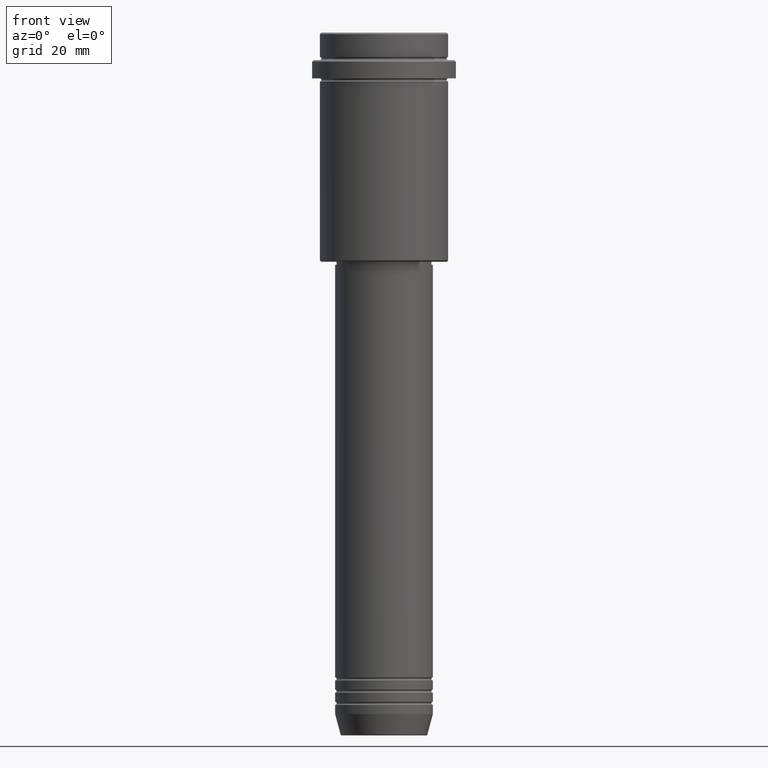
[diagram: clean part render]
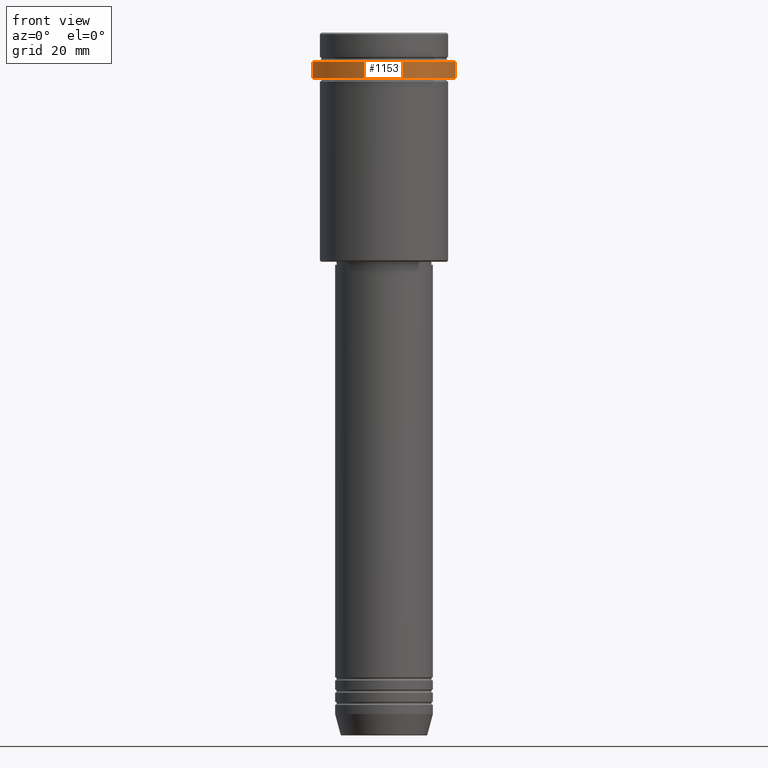
[diagram: same view with one face highlighted and labeled with its STEP entity id]
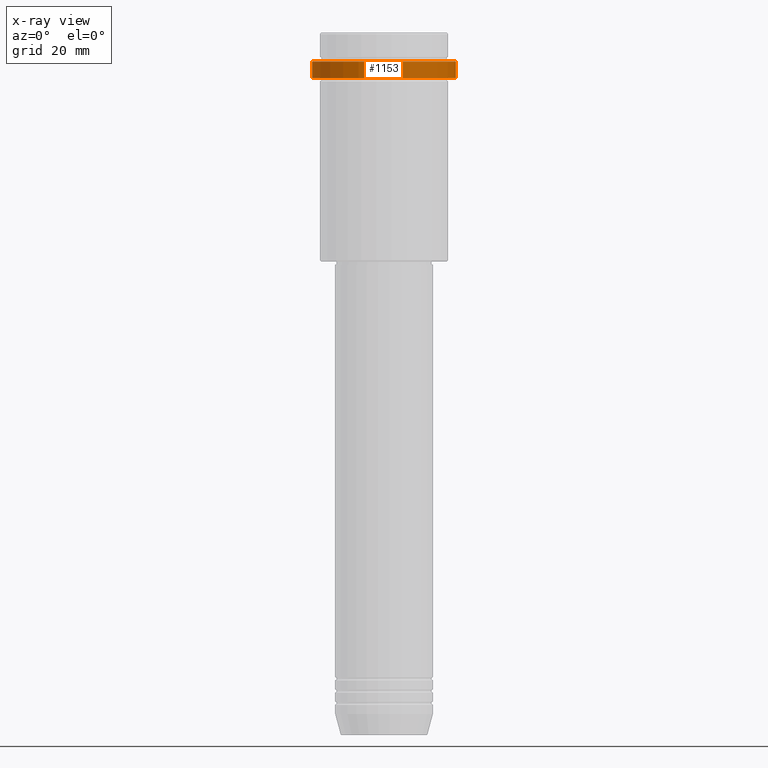
[diagram: x-ray of the same camera — body ghosted, the highlighted face saturated]
A machine part, front view. The second image highlights one B-rep face of the part: STEP entity #1153.
The next image is the same camera in x-ray: the body ghosted, the highlighted face saturated — about 0% of this face is hidden behind the body in this view.
In plain terms, the highlighted cylindrical surface (partial cylindrical patch) has radius 23.5 mm, axis along (-0, -0, 1).
Its self-contained STEP definition (entity closure, byte-faithful):
#51 = VECTOR ( 'NONE', #336, 1000.000000000000000 ) ;
#63 = ORIENTED_EDGE ( 'NONE', *, *, #329, .F. ) ;
#74 = ORIENTED_EDGE ( 'NONE', *, *, #936, .T. ) ;
#128 = DIRECTION ( 'NONE',  ( -0.000000000000000000, -0.000000000000000000, 1.000000000000000000 ) ) ;
#196 = DIRECTION ( 'NONE',  ( 0.000000000000000000, 0.000000000000000000, -1.000000000000000000 ) ) ;
#234 = DIRECTION ( 'NONE',  ( 1.000000000000000000, 0.000000000000000000, 0.000000000000000000 ) ) ;
#240 = CYLINDRICAL_SURFACE ( 'NONE', #1406, 23.50000000000000000 ) ;
#324 = DIRECTION ( 'NONE',  ( 1.000000000000000000, 0.000000000000000000, 0.000000000000000000 ) ) ;
#329 = EDGE_CURVE ( 'NONE', #1392, #1168, #603, .T. ) ;
#336 = DIRECTION ( 'NONE',  ( -0.000000000000000000, -0.000000000000000000, 1.000000000000000000 ) ) ;
#398 = CIRCLE ( 'NONE', #1181, 23.50000000000000355 ) ;
#403 = EDGE_CURVE ( 'NONE', #1392, #1360, #398, .T. ) ;
#486 = CARTESIAN_POINT ( 'NONE',  ( 0.000000000000000000, 0.000000000000000000, 0.000000000000000000 ) ) ;
#563 = CARTESIAN_POINT ( 'NONE',  ( 0.000000000000000000, 0.000000000000000000, -15.00000000000000178 ) ) ;
#574 = EDGE_CURVE ( 'NONE', #1360, #772, #877, .T. ) ;
#599 = CARTESIAN_POINT ( 'NONE',  ( -23.50000000000000000, 2.877919977996280320E-15, -9.500000000000001776 ) ) ;
#603 = LINE ( 'NONE', #940, #1257 ) ;
#618 = ORIENTED_EDGE ( 'NONE', *, *, #403, .T. ) ;
#767 = AXIS2_PLACEMENT_3D ( 'NONE', #1282, #196, #1301 ) ;
#772 = VERTEX_POINT ( 'NONE', #1219 ) ;
#800 = DIRECTION ( 'NONE',  ( -0.000000000000000000, -0.000000000000000000, 1.000000000000000000 ) ) ;
#877 = LINE ( 'NONE', #990, #51 ) ;
#936 = EDGE_CURVE ( 'NONE', #772, #1168, #1045, .T. ) ;
#940 = CARTESIAN_POINT ( 'NONE',  ( -23.50000000000000000, 2.877919977996280320E-15, 0.000000000000000000 ) ) ;
#990 = CARTESIAN_POINT ( 'NONE',  ( 23.50000000000000000, 0.000000000000000000, 0.000000000000000000 ) ) ;
#1002 = EDGE_LOOP ( 'NONE', ( #63, #618, #1239, #74 ) ) ;
#1029 = FACE_OUTER_BOUND ( 'NONE', #1002, .T. ) ;
#1045 = CIRCLE ( 'NONE', #767, 23.50000000000000000 ) ;
#1075 = CARTESIAN_POINT ( 'NONE',  ( 23.50000000000000355, 0.000000000000000000, -15.00000000000000178 ) ) ;
#1153 = ADVANCED_FACE ( 'NONE', ( #1029 ), #240, .T. ) ;
#1168 = VERTEX_POINT ( 'NONE', #599 ) ;
#1181 = AXIS2_PLACEMENT_3D ( 'NONE', #563, #1314, #324 ) ;
#1219 = CARTESIAN_POINT ( 'NONE',  ( 23.50000000000000000, 0.000000000000000000, -9.500000000000001776 ) ) ;
#1239 = ORIENTED_EDGE ( 'NONE', *, *, #574, .T. ) ;
#1257 = VECTOR ( 'NONE', #800, 1000.000000000000000 ) ;
#1282 = CARTESIAN_POINT ( 'NONE',  ( 0.000000000000000000, 0.000000000000000000, -9.500000000000001776 ) ) ;
#1295 = CARTESIAN_POINT ( 'NONE',  ( -23.50000000000000711, 2.877919977996281109E-15, -15.00000000000000178 ) ) ;
#1301 = DIRECTION ( 'NONE',  ( 1.000000000000000000, 0.000000000000000000, 0.000000000000000000 ) ) ;
#1314 = DIRECTION ( 'NONE',  ( -0.000000000000000000, -0.000000000000000000, 1.000000000000000000 ) ) ;
#1360 = VERTEX_POINT ( 'NONE', #1075 ) ;
#1392 = VERTEX_POINT ( 'NONE', #1295 ) ;
#1406 = AXIS2_PLACEMENT_3D ( 'NONE', #486, #128, #234 ) ;